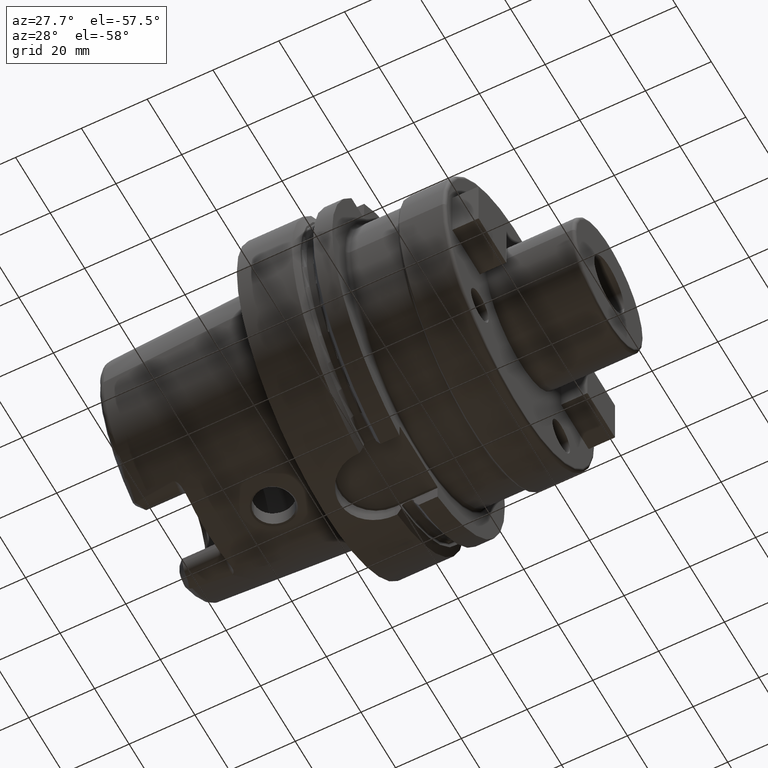
[diagram: clean part render]
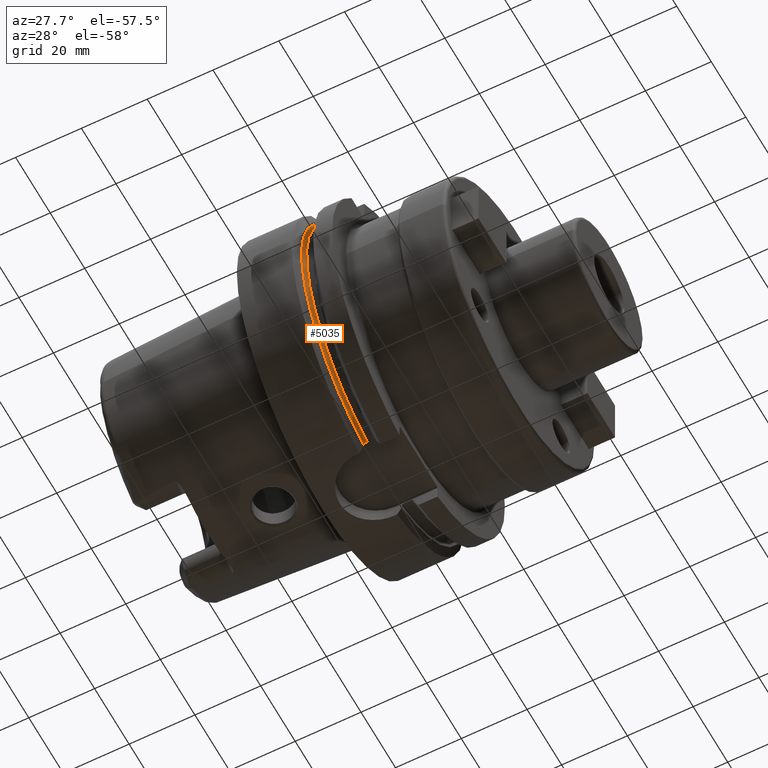
[diagram: same view with one face highlighted and labeled with its STEP entity id]
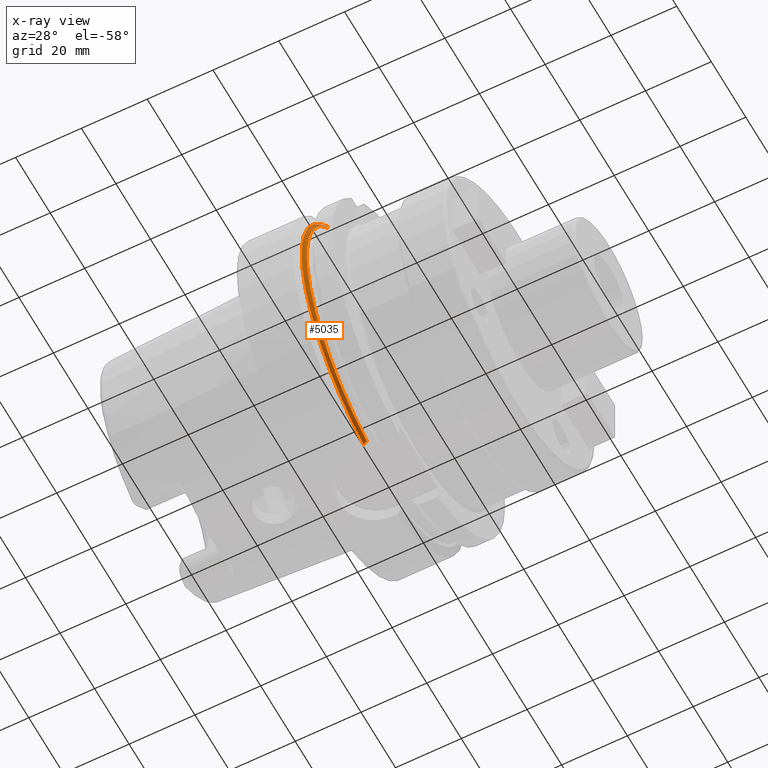
[diagram: x-ray of the same camera — body ghosted, the highlighted face saturated]
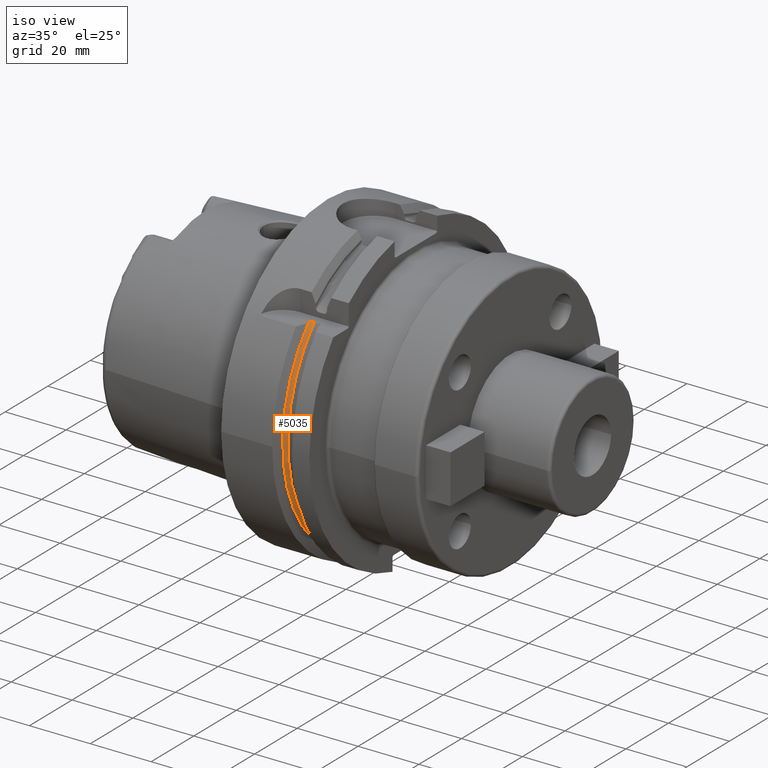
[diagram: same view with one face highlighted and labeled with its STEP entity id]
A machine part, auxiliary view. The second image highlights one B-rep face of the part: STEP entity #5035.
The next image is the same camera in x-ray: the body ghosted, the highlighted face saturated — about 2% of this face is hidden behind the body in this view.
A second angle (iso view) of the same face is appended — the face is thin or edge-on in the first view.
In plain terms, the highlighted toroidal blend (fillet) surface has major radius 47 mm and minor (blend) radius 1 mm.
Its self-contained STEP definition (entity closure, byte-faithful):
#1405=CARTESIAN_POINT('',(1.9125E1,-3.352238058372E1,3.15E1));
#1406=CARTESIAN_POINT('',(1.907497614728E1,-3.352238058372E1,3.15E1));
#1407=CARTESIAN_POINT('',(1.897701784607E1,-3.353249557566E1,3.15E1));
#1408=CARTESIAN_POINT('',(1.883373619528E1,-3.357686808517E1,3.15E1));
#1409=CARTESIAN_POINT('',(1.870193192563E1,-3.364636657565E1,3.15E1));
#1410=CARTESIAN_POINT('',(1.858379344950E1,-3.373566817140E1,3.15E1));
#1411=CARTESIAN_POINT('',(1.847790521215E1,-3.384250269787E1,3.15E1));
#1412=CARTESIAN_POINT('',(1.838099648072E1,-3.396995092392E1,3.15E1));
#1413=CARTESIAN_POINT('',(1.829402378121E1,-3.412035399335E1,3.15E1));
#1414=CARTESIAN_POINT('',(1.822058084936E1,-3.429330627535E1,3.15E1));
#1415=CARTESIAN_POINT('',(1.816533551682E1,-3.448402862690E1,3.15E1));
#1416=CARTESIAN_POINT('',(1.813199463036E1,-3.468480327868E1,3.15E1));
#1417=CARTESIAN_POINT('',(1.8125E1,-3.481613731133E1,3.15E1));
#1418=CARTESIAN_POINT('',(1.8125E1,-3.488194375318E1,3.15E1));
#1420=CARTESIAN_POINT('',(1.8125E1,-1.1E1,-4.569463863518E1));
#1421=CARTESIAN_POINT('',(1.8125E1,-1.1E1,-4.563340610589E1));
#1422=CARTESIAN_POINT('',(1.813536226459E1,-1.1E1,-4.551322498754E1));
#1423=CARTESIAN_POINT('',(1.818231081564E1,-1.1E1,-4.533561198724E1));
#1424=CARTESIAN_POINT('',(1.825712048921E1,-1.1E1,-4.517323557421E1));
#1425=CARTESIAN_POINT('',(1.835805311160E1,-1.1E1,-4.502603063031E1));
#1426=CARTESIAN_POINT('',(1.848438189337E1,-1.1E1,-4.489759268503E1));
#1427=CARTESIAN_POINT('',(1.862724775230E1,-1.1E1,-4.479622389887E1));
#1428=CARTESIAN_POINT('',(1.878447051220E1,-1.1E1,-4.472139137436E1));
#1429=CARTESIAN_POINT('',(1.895444689160E1,-1.1E1,-4.467530502268E1));
#1430=CARTESIAN_POINT('',(1.906768535065E1,-1.1E1,-4.466542286825E1));
#1431=CARTESIAN_POINT('',(1.9125E1,-1.1E1,-4.466542286825E1));
#1433=CARTESIAN_POINT('',(1.8125E1,0.E0,0.E0));
#1434=DIRECTION('',(-1.E0,0.E0,0.E0));
#1435=DIRECTION('',(0.E0,-2.340425531915E-1,-9.722263539401E-1));
#1436=AXIS2_PLACEMENT_3D('',#1433,#1434,#1435);
#1492=CARTESIAN_POINT('',(1.9125E1,0.E0,0.E0));
#1493=DIRECTION('',(-1.E0,0.E0,0.E0));
#1494=DIRECTION('',(0.E0,-2.391304347826E-1,-9.709874536577E-1));
#1495=AXIS2_PLACEMENT_3D('',#1492,#1493,#1494);
#3361=CARTESIAN_POINT('',(1.8125E1,-1.1E1,-4.569463863518E1));
#3363=VERTEX_POINT('',#3361);
#3365=VERTEX_POINT('',#1431);
#3411=CARTESIAN_POINT('',(1.8125E1,-3.488194375318E1,3.15E1));
#3413=VERTEX_POINT('',#3411);
#3418=VERTEX_POINT('',#1405);
#5023=CARTESIAN_POINT('',(1.9125E1,0.E0,0.E0));
#5024=DIRECTION('',(1.E0,0.E0,0.E0));
#5025=DIRECTION('',(0.E0,-1.E0,0.E0));
#5026=AXIS2_PLACEMENT_3D('',#5023,#5024,#5025);
#5027=TOROIDAL_SURFACE('',#5026,4.7E1,1.E0);
#5028=ORIENTED_EDGE('',*,*,#4718,.F.);
#5030=ORIENTED_EDGE('',*,*,#5029,.F.);
#5031=ORIENTED_EDGE('',*,*,#4896,.F.);
#5032=ORIENTED_EDGE('',*,*,#4987,.T.);
#5033=EDGE_LOOP('',(#5028,#5030,#5031,#5032));
#5034=FACE_OUTER_BOUND('',#5033,.F.);
#5035=ADVANCED_FACE('',(#5034),#5027,.F.);
#1419=B_SPLINE_CURVE_WITH_KNOTS('',3,(#1405,#1406,#1407,#1408,#1409,#1410,#1411,
#1412,#1413,#1414,#1415,#1416,#1417,#1418),.UNSPECIFIED.,.F.,.F.,(4,1,1,1,1,1,1,
1,1,1,1,4),(0.E0,9.090909090909E-2,1.818181818182E-1,2.727272727273E-1,
3.636363636364E-1,4.545454545455E-1,5.454545454545E-1,6.363636363636E-1,
7.272727272727E-1,8.181818181818E-1,9.090909090909E-1,1.E0),.UNSPECIFIED.);
#1432=B_SPLINE_CURVE_WITH_KNOTS('',3,(#1420,#1421,#1422,#1423,#1424,#1425,#1426,
#1427,#1428,#1429,#1430,#1431),.UNSPECIFIED.,.F.,.F.,(4,1,1,1,1,1,1,1,1,4),
(0.E0,1.111111111111E-1,2.222222222222E-1,3.333333333333E-1,4.444444444444E-1,
5.555555555556E-1,6.666666666667E-1,7.777777777778E-1,8.888888888889E-1,1.E0),
.UNSPECIFIED.);
#1437=CIRCLE('',#1436,4.7E1);
#1496=CIRCLE('',#1495,4.6E1);
#4718=EDGE_CURVE('',#3418,#3413,#1419,.T.);
#4896=EDGE_CURVE('',#3363,#3365,#1432,.T.);
#4987=EDGE_CURVE('',#3363,#3413,#1437,.T.);
#5029=EDGE_CURVE('',#3365,#3418,#1496,.T.);